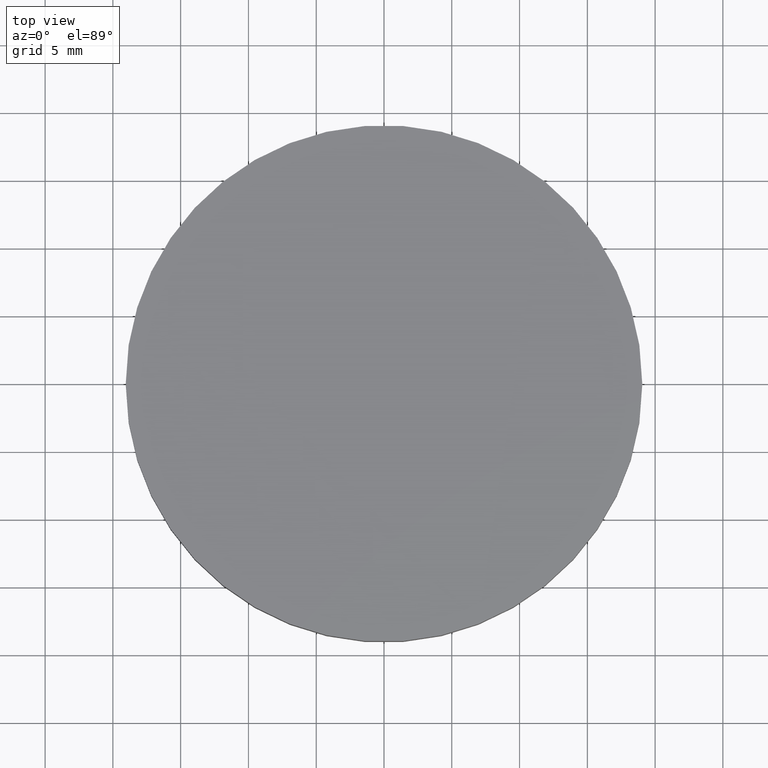
[diagram: clean part render]
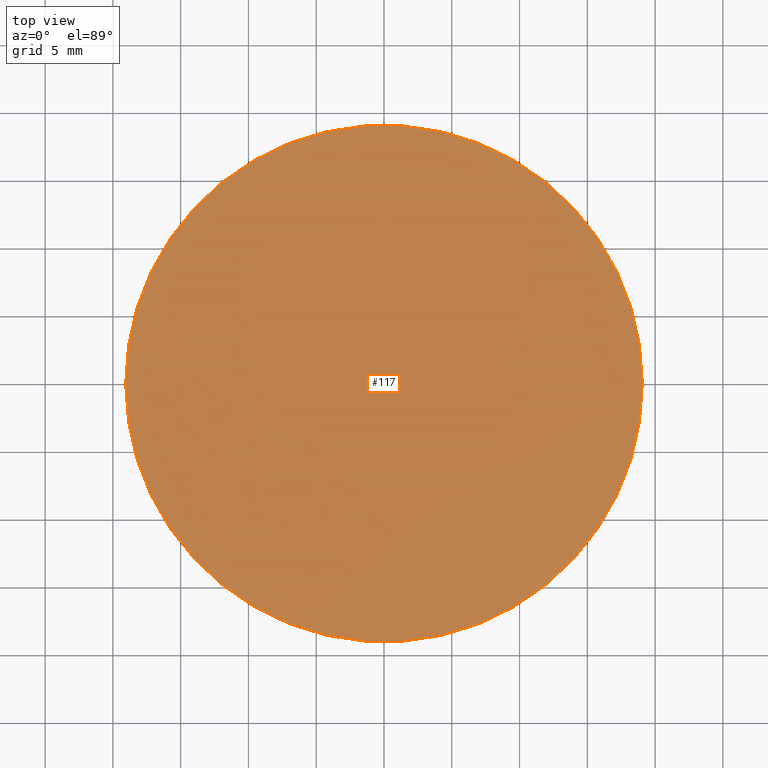
[diagram: same view with one face highlighted and labeled with its STEP entity id]
A machine part, top view. The second image highlights one B-rep face of the part: STEP entity #117.
In plain terms, the highlighted planar face has unit normal (0, 0, 1).
Its self-contained STEP definition (entity closure, byte-faithful):
#9 = VERTEX_POINT ( 'NONE', #127 ) ;
#10 = EDGE_LOOP ( 'NONE', ( #31, #111 ) ) ;
#19 = DIRECTION ( 'NONE',  ( 1.000000000000000000, 0.0000000000000000000, -0.0000000000000000000 ) ) ;
#22 = AXIS2_PLACEMENT_3D ( 'NONE', #125, #109, #102 ) ;
#26 = CIRCLE ( 'NONE', #118, 19.05000000000000100 ) ;
#31 = ORIENTED_EDGE ( 'NONE', *, *, #48, .T. ) ;
#32 = CARTESIAN_POINT ( 'NONE',  ( 19.05000000000000100, 2.332952152375708000E-015, 4.000000000000000000 ) ) ;
#37 = DIRECTION ( 'NONE',  ( 0.0000000000000000000, 0.0000000000000000000, 1.000000000000000000 ) ) ;
#48 = EDGE_CURVE ( 'NONE', #9, #64, #26, .T. ) ;
#57 = DIRECTION ( 'NONE',  ( 1.000000000000000000, 0.0000000000000000000, 0.0000000000000000000 ) ) ;
#64 = VERTEX_POINT ( 'NONE', #32 ) ;
#65 = AXIS2_PLACEMENT_3D ( 'NONE', #78, #73, #19 ) ;
#67 = FACE_OUTER_BOUND ( 'NONE', #10, .T. ) ;
#73 = DIRECTION ( 'NONE',  ( 0.0000000000000000000, 0.0000000000000000000, 1.000000000000000000 ) ) ;
#78 = CARTESIAN_POINT ( 'NONE',  ( 0.0000000000000000000, 0.0000000000000000000, 4.000000000000000000 ) ) ;
#82 = CIRCLE ( 'NONE', #22, 19.05000000000000100 ) ;
#94 = PLANE ( 'NONE',  #65 ) ;
#102 = DIRECTION ( 'NONE',  ( 1.000000000000000000, 0.0000000000000000000, 0.0000000000000000000 ) ) ;
#109 = DIRECTION ( 'NONE',  ( 0.0000000000000000000, 0.0000000000000000000, 1.000000000000000000 ) ) ;
#111 = ORIENTED_EDGE ( 'NONE', *, *, #119, .T. ) ;
#117 = ADVANCED_FACE ( 'NONE', ( #67 ), #94, .T. ) ;
#118 = AXIS2_PLACEMENT_3D ( 'NONE', #121, #37, #57 ) ;
#119 = EDGE_CURVE ( 'NONE', #64, #9, #82, .T. ) ;
#121 = CARTESIAN_POINT ( 'NONE',  ( 0.0000000000000000000, 0.0000000000000000000, 4.000000000000000000 ) ) ;
#125 = CARTESIAN_POINT ( 'NONE',  ( 0.0000000000000000000, 0.0000000000000000000, 4.000000000000000000 ) ) ;
#127 = CARTESIAN_POINT ( 'NONE',  ( -19.05000000000000100, 0.0000000000000000000, 4.000000000000000000 ) ) ;